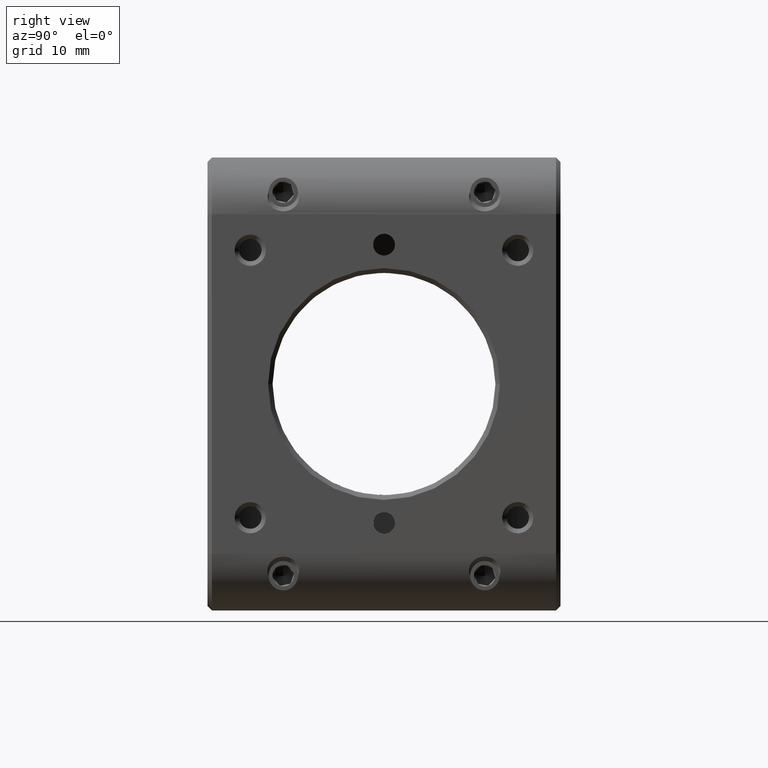
[diagram: clean part render]
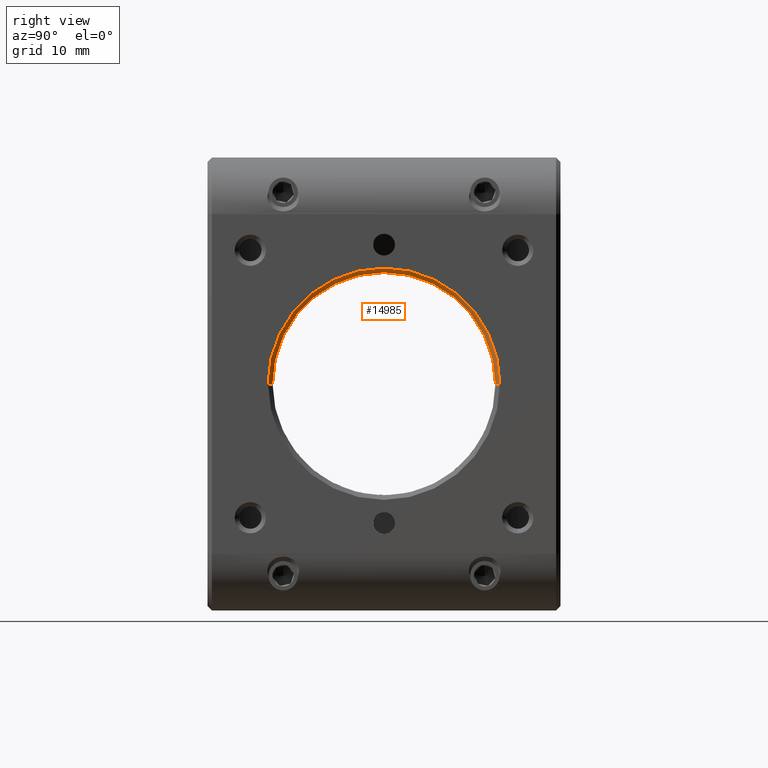
[diagram: same view with one face highlighted and labeled with its STEP entity id]
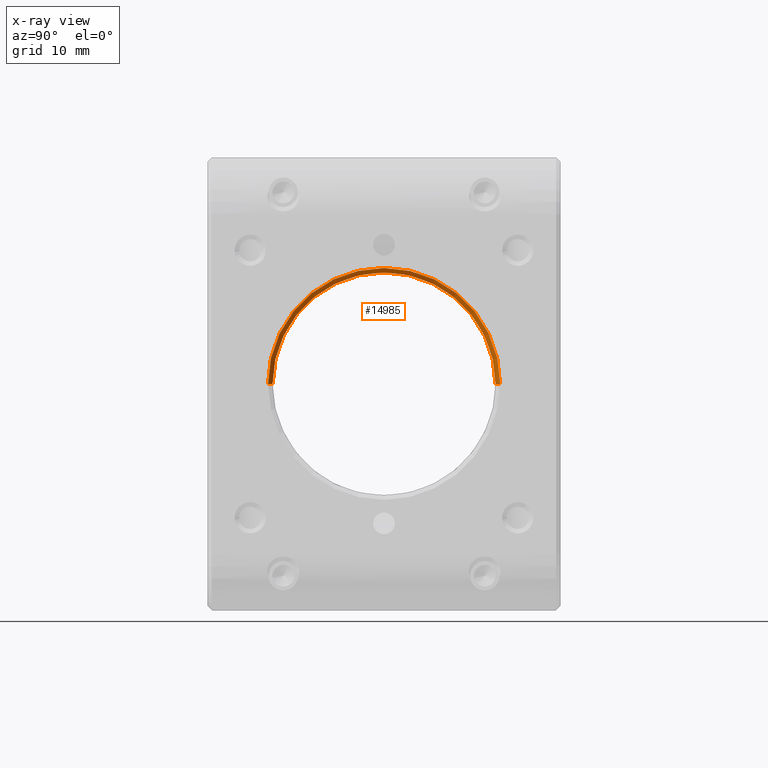
[diagram: x-ray of the same camera — body ghosted, the highlighted face saturated]
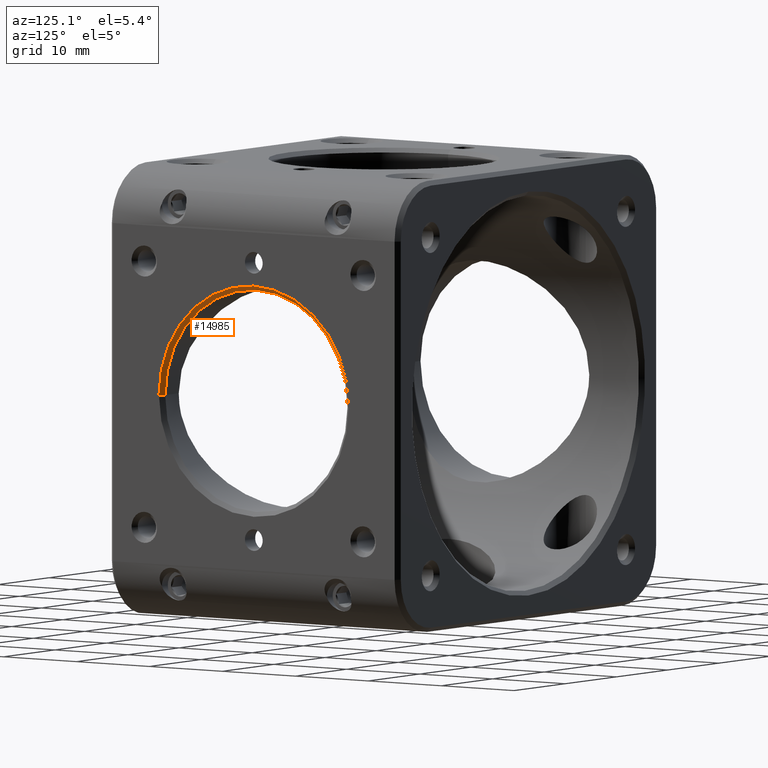
[diagram: same view with one face highlighted and labeled with its STEP entity id]
A machine part, right view. The second image highlights one B-rep face of the part: STEP entity #14985.
The next image is the same camera in x-ray: the body ghosted, the highlighted face saturated — about 0% of this face is hidden behind the body in this view.
A second angle (auxiliary view) of the same face is appended — the face is thin or edge-on in the first view.
In plain terms, the highlighted conical surface has half-angle 45 deg.
Its self-contained STEP definition (entity closure, byte-faithful):
#762 = CARTESIAN_POINT ( 'NONE',  ( 24.90000000000003766, -12.50000000000001243, 1.530808498934191521E-15 ) ) ;
#1124 = LINE ( 'NONE', #5883, #11775 ) ;
#1396 = DIRECTION ( 'NONE',  ( 2.668805347656630130E-16, -1.000000000000000000, 0.000000000000000000 ) ) ;
#1706 = DIRECTION ( 'NONE',  ( 1.000000000000000000, 8.673617379884083543E-17, 0.000000000000000000 ) ) ;
#2021 = DIRECTION ( 'NONE',  ( 0.7071067811865464625, -0.7071067811865486830, 8.659560562354948882E-17 ) ) ;
#2112 = VERTEX_POINT ( 'NONE', #10440 ) ;
#2506 = LINE ( 'NONE', #8111, #15718 ) ;
#2969 = DIRECTION ( 'NONE',  ( 0.000000000000000000, 1.000000000000000000, 0.000000000000000000 ) ) ;
#3463 = ORIENTED_EDGE ( 'NONE', *, *, #16067, .F. ) ;
#3639 = CONICAL_SURFACE ( 'NONE', #12514, 12.50000000000000000, 0.7853981633974500554 ) ;
#3907 = VERTEX_POINT ( 'NONE', #9468 ) ;
#4486 = EDGE_LOOP ( 'NONE', ( #15855, #3463, #15425, #6562 ) ) ;
#4792 = CIRCLE ( 'NONE', #11085, 12.50000000000000000 ) ;
#5883 = CARTESIAN_POINT ( 'NONE',  ( 24.90000000000003766, -12.50000000000001243, 1.530808498934191521E-15 ) ) ;
#6562 = ORIENTED_EDGE ( 'NONE', *, *, #16713, .F. ) ;
#8111 = CARTESIAN_POINT ( 'NONE',  ( 24.90000000000003766, 12.49999999999998934, 0.000000000000000000 ) ) ;
#8317 = CARTESIAN_POINT ( 'NONE',  ( 24.90000000000003766, -1.293989817092901055E-14, 0.000000000000000000 ) ) ;
#8624 = CARTESIAN_POINT ( 'NONE',  ( 24.90000000000003766, -1.293989817092901055E-14, 0.000000000000000000 ) ) ;
#8747 = DIRECTION ( 'NONE',  ( 1.000000000000000000, 8.673617379884083543E-17, 0.000000000000000000 ) ) ;
#9468 = CARTESIAN_POINT ( 'NONE',  ( 25.40000000000001990, -12.99999999999999645, 1.592040838891557123E-15 ) ) ;
#9949 = VERTEX_POINT ( 'NONE', #13128 ) ;
#10440 = CARTESIAN_POINT ( 'NONE',  ( 25.40000000000001279, 12.99999999999996803, 0.000000000000000000 ) ) ;
#10813 = DIRECTION ( 'NONE',  ( -1.000000000000000000, -1.752245935330108181E-16, 0.000000000000000000 ) ) ;
#11085 = AXIS2_PLACEMENT_3D ( 'NONE', #8624, #8747, #14137 ) ;
#11775 = VECTOR ( 'NONE', #2021, 1000.000000000000000 ) ;
#12514 = AXIS2_PLACEMENT_3D ( 'NONE', #8317, #1706, #2969 ) ;
#13128 = CARTESIAN_POINT ( 'NONE',  ( 24.90000000000003766, 12.49999999999999112, 0.000000000000000000 ) ) ;
#14137 = DIRECTION ( 'NONE',  ( 0.000000000000000000, -1.000000000000000000, 0.000000000000000000 ) ) ;
#14670 = DIRECTION ( 'NONE',  ( 0.7071067811865462405, 0.7071067811865489050, 0.000000000000000000 ) ) ;
#14853 = CARTESIAN_POINT ( 'NONE',  ( 25.40000000000001634, -1.289653008402959195E-14, 0.000000000000000000 ) ) ;
#14881 = CIRCLE ( 'NONE', #16947, 12.99999999999998046 ) ;
#14985 = ADVANCED_FACE ( 'NONE', ( #15182 ), #3639, .F. ) ;
#15150 = VERTEX_POINT ( 'NONE', #762 ) ;
#15182 = FACE_OUTER_BOUND ( 'NONE', #4486, .T. ) ;
#15395 = EDGE_CURVE ( 'NONE', #15150, #3907, #1124, .T. ) ;
#15425 = ORIENTED_EDGE ( 'NONE', *, *, #16758, .T. ) ;
#15718 = VECTOR ( 'NONE', #14670, 1000.000000000000000 ) ;
#15855 = ORIENTED_EDGE ( 'NONE', *, *, #15395, .F. ) ;
#16067 = EDGE_CURVE ( 'NONE', #9949, #15150, #4792, .T. ) ;
#16713 = EDGE_CURVE ( 'NONE', #3907, #2112, #14881, .T. ) ;
#16758 = EDGE_CURVE ( 'NONE', #9949, #2112, #2506, .T. ) ;
#16947 = AXIS2_PLACEMENT_3D ( 'NONE', #14853, #10813, #1396 ) ;